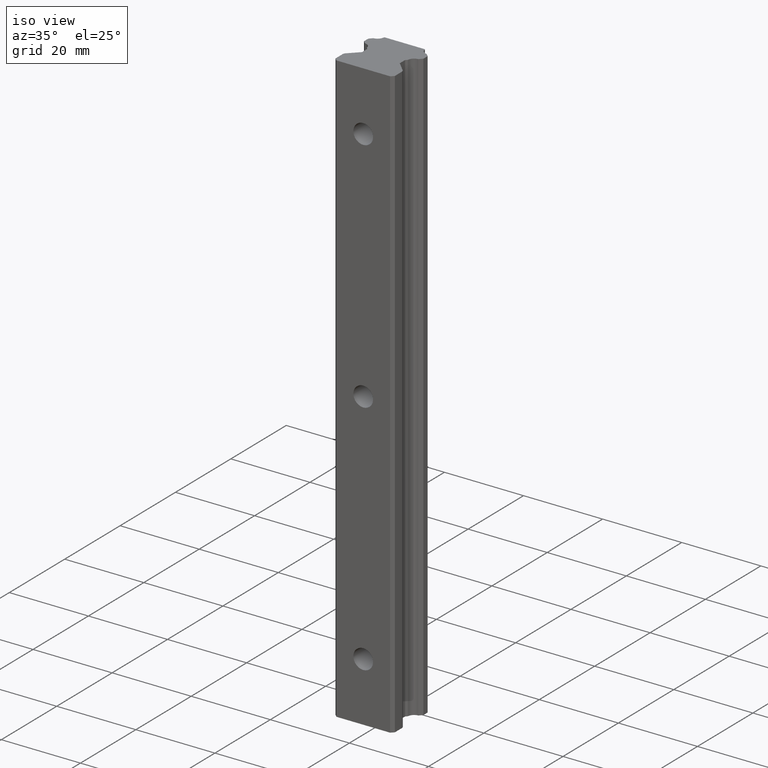
[diagram: clean part render]
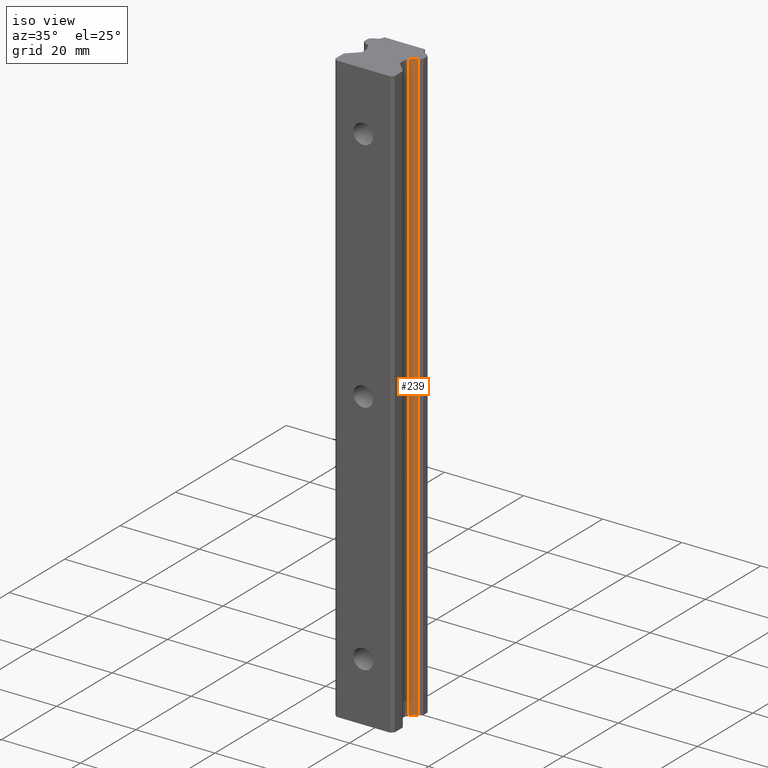
[diagram: same view with one face highlighted and labeled with its STEP entity id]
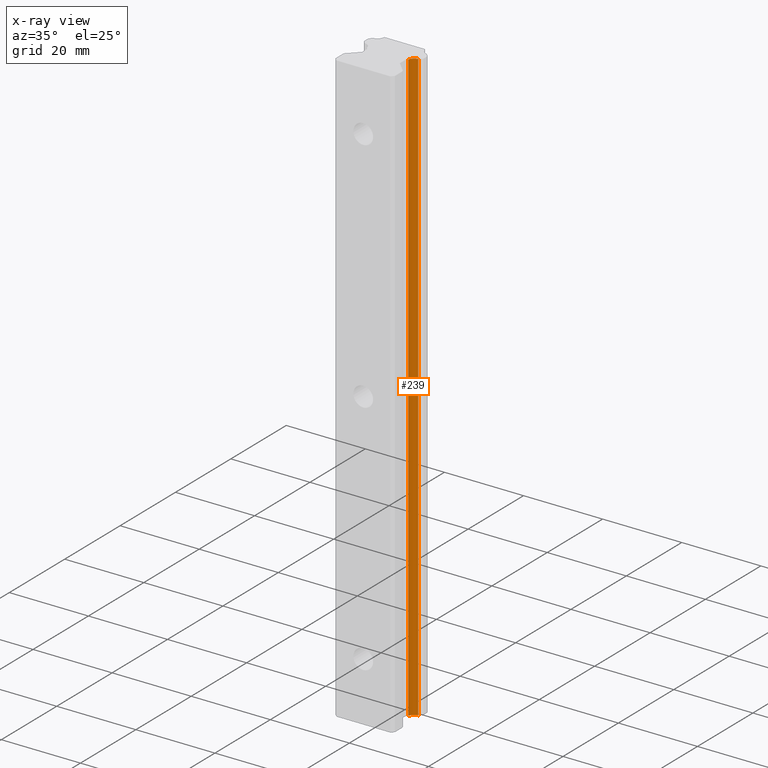
[diagram: x-ray of the same camera — body ghosted, the highlighted face saturated]
A machine part, iso view. The second image highlights one B-rep face of the part: STEP entity #239.
The next image is the same camera in x-ray: the body ghosted, the highlighted face saturated — about 0% of this face is hidden behind the body in this view.
In plain terms, the highlighted cylindrical surface (edge-blend (fillet) strip) has radius 1.62 mm, axis along (0, 0, 1).
Its self-contained STEP definition (entity closure, byte-faithful):
#73 = VERTEX_POINT ( 'NONE', #467 ) ;
#74 = EDGE_CURVE ( 'NONE', #73, #87, #488, .T. ) ;
#87 = VERTEX_POINT ( 'NONE', #491 ) ;
#92 = VERTEX_POINT ( 'NONE', #517 ) ;
#108 = EDGE_CURVE ( 'NONE', #109, #92, #556, .T. ) ;
#109 = VERTEX_POINT ( 'NONE', #557 ) ;
#189 = EDGE_LOOP ( 'NONE', ( #190, #251, #252, #257 ) ) ;
#190 = ORIENTED_EDGE ( 'NONE', *, *, #191, .F. ) ;
#191 = EDGE_CURVE ( 'NONE', #87, #109, #533, .T. ) ;
#239 = ADVANCED_FACE ( 'NONE', ( #747 ), #727, .F. ) ;
#251 = ORIENTED_EDGE ( 'NONE', *, *, #74, .F. ) ;
#252 = ORIENTED_EDGE ( 'NONE', *, *, #253, .T. ) ;
#253 = EDGE_CURVE ( 'NONE', #73, #92, #786, .T. ) ;
#257 = ORIENTED_EDGE ( 'NONE', *, *, #108, .F. ) ;
#467 = CARTESIAN_POINT ( 'NONE',  ( 5.216972520087463000, -6.154862696992599200, -75.00000000000000000 ) ) ;
#485 = DIRECTION ( 'NONE',  ( 0.0000000000000000000, 0.0000000000000000000, 1.000000000000000000 ) ) ;
#486 = VECTOR ( 'NONE', #485, 1000.000000000000000 ) ;
#487 = CARTESIAN_POINT ( 'NONE',  ( 5.216972521777756300, -6.154862683497468000, -75.00000000000000000 ) ) ;
#488 = LINE ( 'NONE', #487, #486 ) ;
#491 = CARTESIAN_POINT ( 'NONE',  ( 5.216972520087463000, -6.154862696992599200, 75.00000000000000000 ) ) ;
#517 = CARTESIAN_POINT ( 'NONE',  ( 6.741857403609103000, -4.747137545402787300, -75.00000000000000000 ) ) ;
#533 = CIRCLE ( 'NONE', #693, 1.620000000000000800 ) ;
#556 = LINE ( 'NONE', #560, #559 ) ;
#557 = CARTESIAN_POINT ( 'NONE',  ( 6.741857403609103000, -4.747137545402787300, 75.00000000000000000 ) ) ;
#558 = DIRECTION ( 'NONE',  ( 0.0000000000000000000, 0.0000000000000000000, -1.000000000000000000 ) ) ;
#559 = VECTOR ( 'NONE', #558, 1000.000000000000000 ) ;
#560 = CARTESIAN_POINT ( 'NONE',  ( 6.741857403608989300, -4.747137545402793500, -75.00000000000000000 ) ) ;
#690 = DIRECTION ( 'NONE',  ( 1.000000000000000000, 0.0000000000000000000, 0.0000000000000000000 ) ) ;
#691 = DIRECTION ( 'NONE',  ( 0.0000000000000000000, 0.0000000000000000000, -1.000000000000000000 ) ) ;
#692 = CARTESIAN_POINT ( 'NONE',  ( 6.823273962873000400, -6.365090370387999700, 75.00000000000000000 ) ) ;
#693 = AXIS2_PLACEMENT_3D ( 'NONE', #692, #691, #690 ) ;
#724 = DIRECTION ( 'NONE',  ( 1.000000000000000000, 0.0000000000000000000, 0.0000000000000000000 ) ) ;
#725 = DIRECTION ( 'NONE',  ( 0.0000000000000000000, 0.0000000000000000000, 1.000000000000000000 ) ) ;
#726 = AXIS2_PLACEMENT_3D ( 'NONE', #752, #725, #724 ) ;
#727 = CYLINDRICAL_SURFACE ( 'NONE', #726, 1.620000000000000800 ) ;
#747 = FACE_OUTER_BOUND ( 'NONE', #189, .T. ) ;
#752 = CARTESIAN_POINT ( 'NONE',  ( 6.823273962873000400, -6.365090370387999700, -75.00000000000000000 ) ) ;
#777 = DIRECTION ( 'NONE',  ( 1.000000000000000000, 0.0000000000000000000, 0.0000000000000000000 ) ) ;
#778 = DIRECTION ( 'NONE',  ( 0.0000000000000000000, 0.0000000000000000000, -1.000000000000000000 ) ) ;
#779 = CARTESIAN_POINT ( 'NONE',  ( 6.823273962873000400, -6.365090370387999700, -75.00000000000000000 ) ) ;
#780 = AXIS2_PLACEMENT_3D ( 'NONE', #779, #778, #777 ) ;
#786 = CIRCLE ( 'NONE', #780, 1.620000000000000800 ) ;